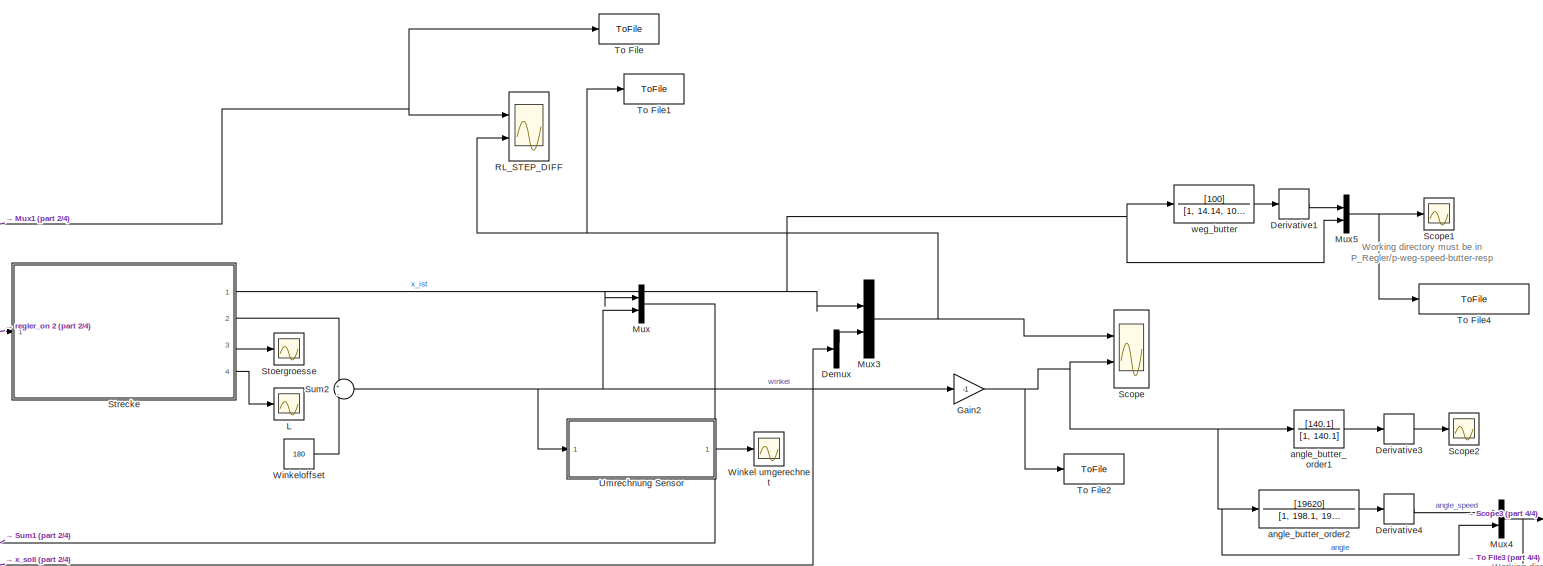
[diagram: root canvas - part 1/4, right side, full height]
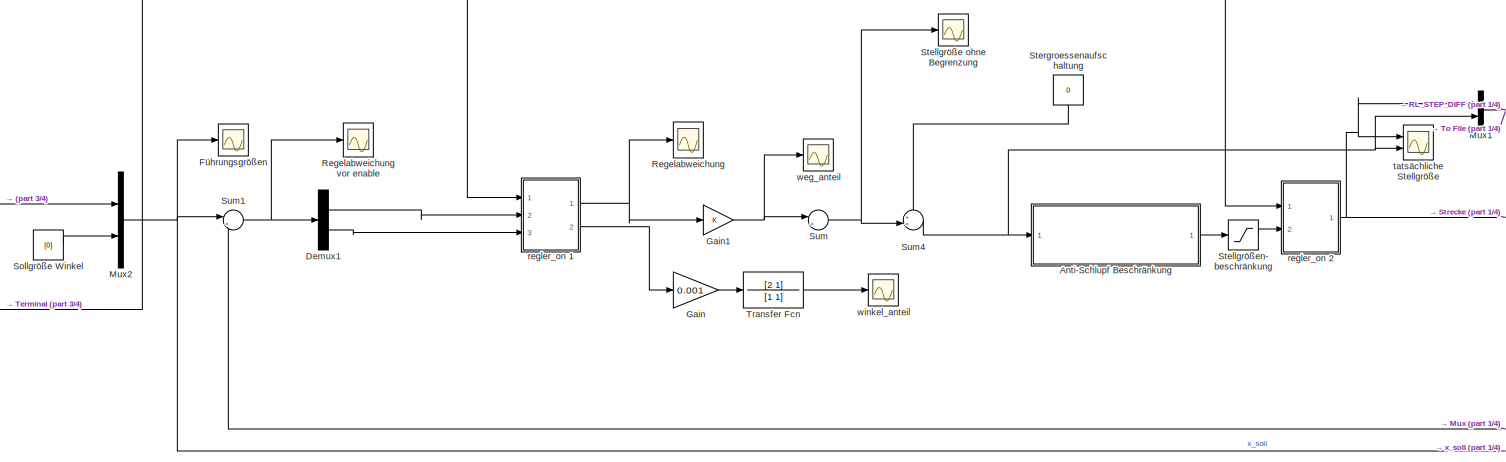
[diagram: root canvas - part 2/4, middle left region]
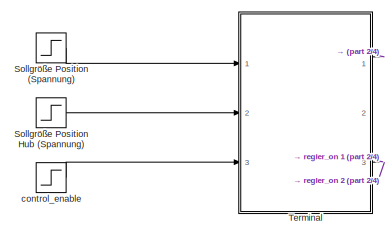
[diagram: root canvas - part 3/4, middle left region]
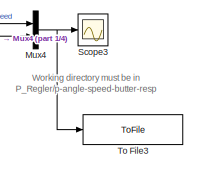
[diagram: root canvas - part 4/4, bottom right region]
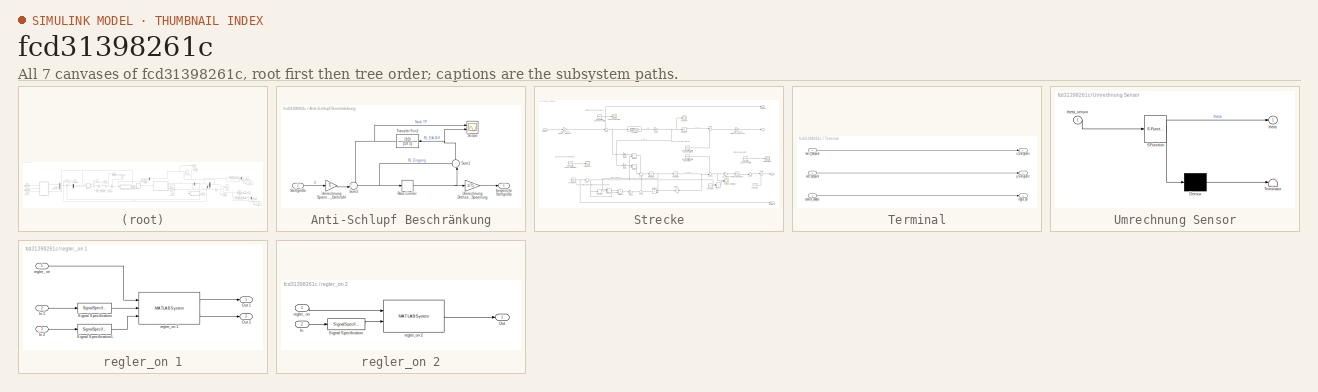
[diagram: thumbnail index - all 7 canvases of the model, root first then tree order]
MODEL slx_fcd31398261c
KIND model
CONFIG AbsTol = auto
CONFIG EnableMultiTasking = off
CONFIG FixedStep = 1e-3
CONFIG MaxStep = auto
CONFIG MinStep = auto
CONFIG RelTol = 1e3
CONFIG SampleTimeConstraint = Unconstrained
CONFIG Solver = VariableStepAuto
CONFIG SolverName = VariableStepAuto
CONFIG StartTime = 0.0
CONFIG StopTime = 20
BLOCK [SubSystem] Anti-Schlupf Beschränkung
  Ports = [1, 1]
  RequestExecContextInheritance = off
  Variant = off
BLOCK [RateLimiter] Anti-Schlupf Beschränkung/Rate Limiter
  FallingSlewLimit = -9.57
  RisingSlewLimit = 9.57
  SampleTimeMode = inherited
BLOCK [Scope] Anti-Schlupf Beschränkung/Scope
  NumInputPorts = 2
  Ports = [2]
  ScopeSpecificationString = Simulink.scopes.TimeScopeBlockCfg('CurrentConfiguration', extmgr.ConfigurationSet(extmgr.Configuration('Core','General UI',true),extmgr.Configuration('Core','Source UI',true),extmgr.Configuration('Sources','WiredSimulink',true,'DataLoggingVariableName','ScopeData1'),extmgr.Configuration('Visuals','Time Domain',true,'SerializedDisplays',{struct('MinYLimReal','-84.16163','MaxYLimReal','9.83981','YLa...<+1455ch>
BLOCK [Inport] Anti-Schlupf Beschränkung/Stellgröße
  IconDisplay = Port number
BLOCK [Sum] Anti-Schlupf Beschränkung/Sum1
  IconShape = round
  InputSameDT = off
  Inputs = -+|
  OutDataTypeStr = Inherit: Inherit via internal rule
  Ports = [2, 1]
  SaturateOnIntegerOverflow = off
BLOCK [Sum] Anti-Schlupf Beschränkung/Sum2
  IconShape = round
  InputSameDT = off
  Inputs = ++|
  OutDataTypeStr = Inherit: Inherit via internal rule
  Ports = [2, 1]
  SaturateOnIntegerOverflow = off
BLOCK [TransferFcn] Anti-Schlupf Beschränkung/Transfer Fcn2
  Denominator = [10 1]
  Numerator = [10]
BLOCK [Gain] Anti-Schlupf Beschränkung/Umrechnung Drehzahl_Spannung
  Gain = 1/75
  OutDataTypeStr = Inherit: Inherit via internal rule
  ParamDataTypeStr = Inherit: Inherit via internal rule
  SaturateOnIntegerOverflow = off
BLOCK [Gain] Anti-Schlupf Beschränkung/Umrechnung Spannung_Drehzahl
  Gain = 75
  OutDataTypeStr = Inherit: Inherit via internal rule
  ParamDataTypeStr = Inherit: Inherit via internal rule
  SaturateOnIntegerOverflow = off
BLOCK [Outport] Anti-Schlupf Beschränkung/begrenzte Stellgröße
  IconDisplay = Port number
BLOCK [Demux] Demux
  DisplayOption = bar
  Outputs = 2
  Ports = [1, 2]
BLOCK [Demux] Demux1
  DisplayOption = bar
  Outputs = 2
  Ports = [1, 2]
BLOCK [Derivative] Derivative1
BLOCK [Derivative] Derivative3
BLOCK [Derivative] Derivative4
BLOCK [Scope] Führungsgrößen
  NumInputPorts = 1
  Ports = [1]
  ScopeSpecificationString = Simulink.scopes.TimeScopeBlockCfg('CurrentConfiguration', extmgr.ConfigurationSet(extmgr.Configuration('Core','General UI',true),extmgr.Configuration('Core','Source UI',true),extmgr.Configuration('Sources','WiredSimulink',true,'DataLoggingVariableName','ScopeData7'),extmgr.Configuration('Visuals','Time Domain',true,'SerializedDisplays',{struct('MinYLimReal','-0.125','MaxYLimReal','1.125','YLabelRe...<+1395ch>
BLOCK [Gain] Gain
  Gain = 0.001
  OutDataTypeStr = Inherit: Inherit via internal rule
  ParamDataTypeStr = Inherit: Inherit via internal rule
  SaturateOnIntegerOverflow = off
BLOCK [Gain] Gain1
  OutDataTypeStr = Inherit: Inherit via internal rule
  ParamDataTypeStr = Inherit: Inherit via internal rule
  SaturateOnIntegerOverflow = off
BLOCK [Gain] Gain2
  Gain = -1
  OutDataTypeStr = Inherit: Inherit via internal rule
  ParamDataTypeStr = Inherit: Inherit via internal rule
  SaturateOnIntegerOverflow = off
BLOCK [Scope] L
  NumInputPorts = 1
  Ports = [1]
  ScopeSpecificationString = Simulink.scopes.TimeScopeBlockCfg('CurrentConfiguration', extmgr.ConfigurationSet(extmgr.Configuration('Core','General UI',true),extmgr.Configuration('Core','Source UI',true),extmgr.Configuration('Sources','WiredSimulink',true,'DataLoggingVariableName','ScopeData2','DataLoggingLimitDataPoints',true,'DataLoggingSaveFormat','Array','DataLoggingDecimation','1','DataLoggingDecimateData',true),extmgr.C...<+1467ch>
BLOCK [Mux] Mux
  DisplayOption = bar
  Inputs = 2
  Ports = [2, 1]
BLOCK [Mux] Mux1
  DisplayOption = bar
  Inputs = 2
  Ports = [2, 1]
BLOCK [Mux] Mux2
  DisplayOption = bar
  Inputs = 2
  Ports = [2, 1]
BLOCK [Mux] Mux3
  DisplayOption = bar
  Inputs = 2
  Ports = [2, 1]
BLOCK [Mux] Mux4
  DisplayOption = bar
  Inputs = 2
  Ports = [2, 1]
BLOCK [Mux] Mux5
  DisplayOption = bar
  Inputs = 2
  Ports = [2, 1]
BLOCK [Scope] RL_STEP_DIFF
  NumInputPorts = 2
  Ports = [2]
  ScopeSpecificationString = Simulink.scopes.TimeScopeBlockCfg('CurrentConfiguration', extmgr.ConfigurationSet(extmgr.Configuration('Core','General UI',true,'FigureColor',[1 1 1]),extmgr.Configuration('Core','Source UI',true),extmgr.Configuration('Sources','WiredSimulink',true,'DataLoggingVariableName','ScopeData2'),extmgr.Configuration('Visuals','Time Domain',true,'SerializedDisplays',{struct('MinYLimReal','-0.13002','MaxYLi...<+2327ch>
BLOCK [Scope] Regelabweichung
  NumInputPorts = 1
  Ports = [1]
  ScopeSpecificationString = Simulink.scopes.TimeScopeBlockCfg('CurrentConfiguration', extmgr.ConfigurationSet(extmgr.Configuration('Core','General UI',true),extmgr.Configuration('Core','Source UI',true),extmgr.Configuration('Sources','WiredSimulink',true,'DataLoggingVariableName','ScopeData6'),extmgr.Configuration('Visuals','Time Domain',true,'SerializedDisplays',{struct('MinYLimReal','-0.51161','MaxYLimReal','1.16763','YLab...<+1424ch>
BLOCK [Scope] Regelabweichung vor enable
  NumInputPorts = 1
  Ports = [1]
  ScopeSpecificationString = Simulink.scopes.TimeScopeBlockCfg('CurrentConfiguration', extmgr.ConfigurationSet(extmgr.Configuration('Core','General UI',true),extmgr.Configuration('Core','Source UI',true),extmgr.Configuration('Sources','WiredSimulink',true,'DataLoggingVariableName','ScopeData3'),extmgr.Configuration('Visuals','Time Domain',true,'SerializedDisplays',{struct('MinYLimReal','-7.48148','MaxYLimReal','3.58336','YLab...<+1426ch>
BLOCK [Scope] Scope
  NumInputPorts = 2
  Ports = [2]
  ScopeSpecificationString = Simulink.scopes.TimeScopeBlockCfg('CurrentConfiguration', extmgr.ConfigurationSet(extmgr.Configuration('Core','General UI',true,'FigureColor',[0 0 0]),extmgr.Configuration('Core','Source UI',true),extmgr.Configuration('Sources','WiredSimulink',true,'DataLoggingVariableName','ScopeData1'),extmgr.Configuration('Visuals','Time Domain',true,'SerializedDisplays',{struct('MinYLimReal','-0.17033','MaxYLi...<+2221ch>
BLOCK [Scope] Scope1
  NumInputPorts = 1
  Ports = [1]
  ScopeSpecificationString = Simulink.scopes.TimeScopeBlockCfg('CurrentConfiguration', extmgr.ConfigurationSet(extmgr.Configuration('Core','General UI',true),extmgr.Configuration('Core','Source UI',true),extmgr.Configuration('Sources','WiredSimulink',true,'DataLoggingVariableName','ScopeData2'),extmgr.Configuration('Visuals','Time Domain',true,'SerializedDisplays',{struct('MinYLimReal','-0.1301','MaxYLimReal','1.1301','YLabel...<+1372ch>
BLOCK [Scope] Scope2
  NumInputPorts = 1
  Ports = [1]
  ScopeSpecificationString = Simulink.scopes.TimeScopeBlockCfg('CurrentConfiguration', extmgr.ConfigurationSet(extmgr.Configuration('Core','General UI',true),extmgr.Configuration('Core','Source UI',true),extmgr.Configuration('Sources','WiredSimulink',true,'DataLoggingVariableName','ScopeData2','DataLoggingSaveFormat','Array','DataLoggingDecimation','1','DataLoggingDecimateData',true),extmgr.Configuration('Visuals','Time Domai...<+1494ch>
BLOCK [Scope] Scope3
  NumInputPorts = 1
  Ports = [1]
  ScopeSpecificationString = Simulink.scopes.TimeScopeBlockCfg('CurrentConfiguration', extmgr.ConfigurationSet(extmgr.Configuration('Core','General UI',true),extmgr.Configuration('Core','Source UI',true),extmgr.Configuration('Sources','WiredSimulink',true,'DataLoggingVariableName','ScopeData1'),extmgr.Configuration('Visuals','Time Domain',true,'SerializedDisplays',{struct('MinYLimReal','-30.59846','MaxYLimReal','30.90267','YL...<+1384ch>
BLOCK [Step] Sollgröße Position (Spannung)
  SampleTime = 0
BLOCK [Step] Sollgröße Position Hub (Spannung)
  After = 0.5
  SampleTime = 0
  Time = 2
BLOCK [Constant] Sollgröße Winkel
  Value = [0]
  VectorParams1D = off
BLOCK [Scope] Stellgröße ohne Begrenzung
  NumInputPorts = 1
  Ports = [1]
  ScopeSpecificationString = Simulink.scopes.TimeScopeBlockCfg('CurrentConfiguration', extmgr.ConfigurationSet(extmgr.Configuration('Core','General UI',true),extmgr.Configuration('Core','Source UI',true),extmgr.Configuration('Sources','WiredSimulink',true,'DataLoggingVariableName','ScopeData5'),extmgr.Configuration('Visuals','Time Domain',true,'SerializedDisplays',{struct('MinYLimReal','-310.10219','MaxYLimReal','60.85818','Y...<+1453ch>
BLOCK [Saturate] Stellgrößen- beschränkung
  InputPortMap = u0
  LowerLimit = -1
  Ports = [1, 1]
  UpperLimit = 1
BLOCK [Constant] Stergroessenaufschaltung
  Value = 0
BLOCK [Scope] Stoergroesse
  NumInputPorts = 1
  Ports = [1]
  ScopeSpecificationString = Simulink.scopes.TimeScopeBlockCfg('CurrentConfiguration', extmgr.ConfigurationSet(extmgr.Configuration('Core','General UI',true),extmgr.Configuration('Core','Source UI',true),extmgr.Configuration('Sources','WiredSimulink',true,'DataLoggingVariableName','ScopeData1','DataLoggingLimitDataPoints',true,'DataLoggingSaveFormat','Array','DataLoggingDecimation','1','DataLoggingDecimateData',true),extmgr.C...<+1467ch>
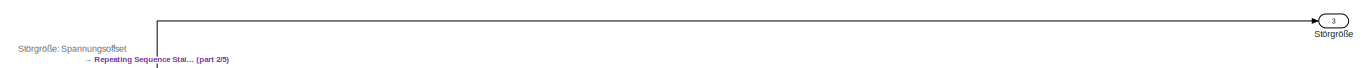
[diagram: Strecke - part 1/5, full width, top band]
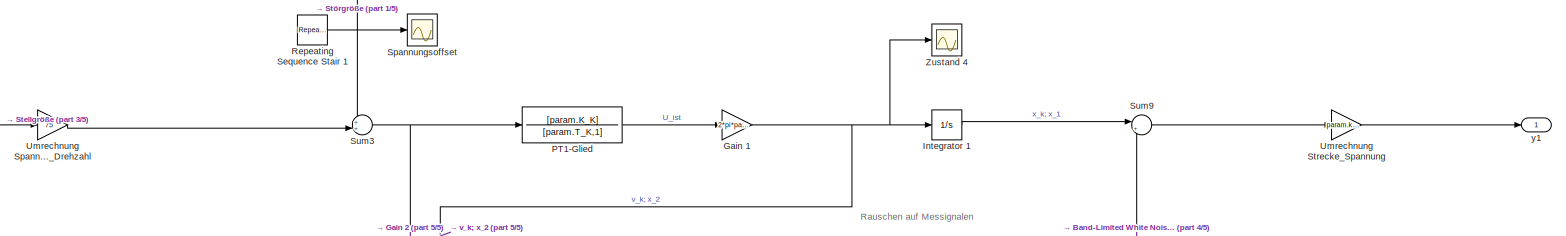
[diagram: Strecke - part 2/5, full width, top band]
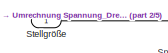
[diagram: Strecke - part 3/5, top left region]
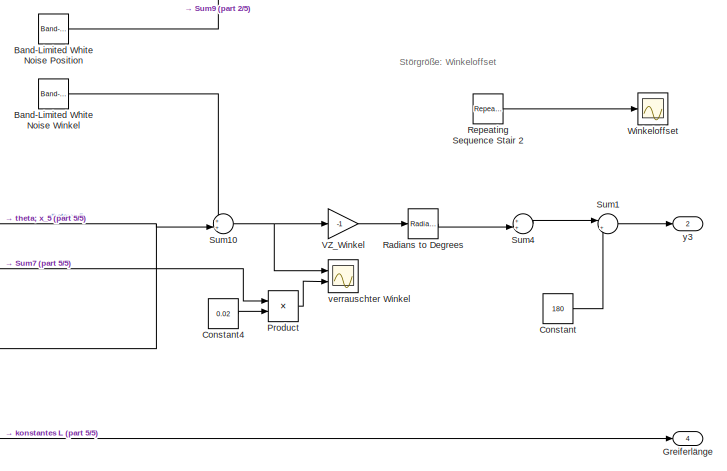
[diagram: Strecke - part 4/5, bottom right region]
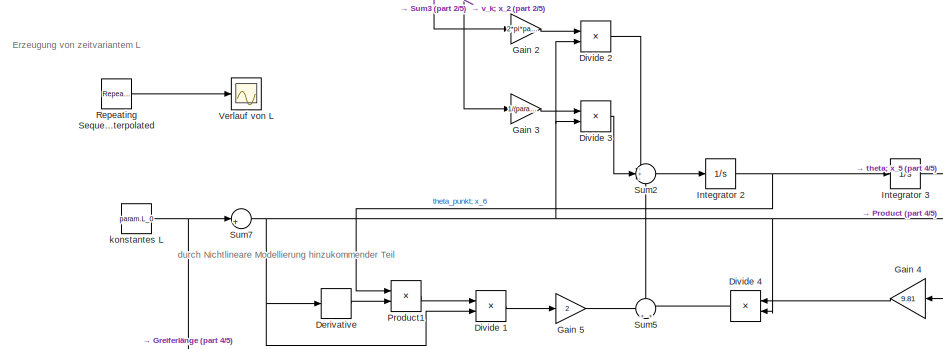
[diagram: Strecke - part 5/5, bottom left region]
BLOCK [SubSystem] Strecke
  Ports = [1, 4]
  RequestExecContextInheritance = off
  Variant = off
BLOCK [Reference] Strecke/Band-Limited White Noise Position  REF=simulink/Sources/Band-Limited
White Noise
  Ports = [0, 1]
  SourceBlock = simulink/Sources/Band-Limited\nWhite Noise
  SourceType = Band-Limited White Noise.
BLOCK [Reference] Strecke/Band-Limited White Noise Winkel  REF=simulink/Sources/Band-Limited
White Noise
  Ports = [0, 1]
  SourceBlock = simulink/Sources/Band-Limited\nWhite Noise
  SourceType = Band-Limited White Noise.
BLOCK [Constant] Strecke/Constant
  Value = 180
BLOCK [Constant] Strecke/Constant4
  Value = 0.02
BLOCK [Derivative] Strecke/Derivative
BLOCK [Product] Strecke/Divide 1
  InputSameDT = off
  Inputs = */
  OutDataTypeStr = Inherit: Inherit via internal rule
  Ports = [2, 1]
  RndMeth = Floor
  SaturateOnIntegerOverflow = off
BLOCK [Product] Strecke/Divide 2
  InputSameDT = off
  Inputs = */
  OutDataTypeStr = Inherit: Inherit via internal rule
  Ports = [2, 1]
  RndMeth = Floor
  SaturateOnIntegerOverflow = off
BLOCK [Product] Strecke/Divide 3
  InputSameDT = off
  Inputs = */
  OutDataTypeStr = Inherit: Inherit via internal rule
  Ports = [2, 1]
  RndMeth = Floor
  SaturateOnIntegerOverflow = off
BLOCK [Product] Strecke/Divide 4
  InputSameDT = off
  Inputs = */
  OutDataTypeStr = Inherit: Inherit via internal rule
  Ports = [2, 1]
  RndMeth = Floor
  SaturateOnIntegerOverflow = off
BLOCK [Gain] Strecke/Gain 1
  Gain = 2*pi*param.r_K/param.ue_K
  OutDataTypeStr = Inherit: Inherit via internal rule
  ParamDataTypeStr = Inherit: Inherit via internal rule
  SaturateOnIntegerOverflow = off
BLOCK [Gain] Strecke/Gain 2
  Gain = 2*pi*param.r_K*param.K_K/(param.ue_K*param.T_K)
  OutDataTypeStr = Inherit: Inherit via internal rule
  ParamDataTypeStr = Inherit: Inherit via internal rule
  SaturateOnIntegerOverflow = off
BLOCK [Gain] Strecke/Gain 3
  Gain = 1/(param.T_K)
  OutDataTypeStr = Inherit: Inherit via internal rule
  ParamDataTypeStr = Inherit: Inherit via internal rule
  SaturateOnIntegerOverflow = off
BLOCK [Gain] Strecke/Gain 4
  Gain = 9.81
  OutDataTypeStr = Inherit: Inherit via internal rule
  ParamDataTypeStr = Inherit: Inherit via internal rule
  SaturateOnIntegerOverflow = off
BLOCK [Gain] Strecke/Gain 5
  Gain = 2
  OutDataTypeStr = Inherit: Inherit via internal rule
  ParamDataTypeStr = Inherit: Inherit via internal rule
  SaturateOnIntegerOverflow = off
BLOCK [Outport] Strecke/Greiferlänge
  IconDisplay = Port number
  Port = 4
BLOCK [Integrator] Strecke/Integrator 1
  Ports = [1, 1]
BLOCK [Integrator] Strecke/Integrator 2
  Ports = [1, 1]
BLOCK [Integrator] Strecke/Integrator 3
  Ports = [1, 1]
BLOCK [TransferFcn] Strecke/PT1-Glied
  Denominator = [param.T_K,1]
  Numerator = [param.K_K]
BLOCK [Product] Strecke/Product
  InputSameDT = off
  OutDataTypeStr = Inherit: Inherit via internal rule
  Ports = [2, 1]
  RndMeth = Floor
  SaturateOnIntegerOverflow = off
BLOCK [Product] Strecke/Product1
  InputSameDT = off
  OutDataTypeStr = Inherit: Inherit via internal rule
  Ports = [2, 1]
  RndMeth = Floor
  SaturateOnIntegerOverflow = off
BLOCK [Reference] Strecke/Radians to Degrees  REF=simulink_extras/Transformations/Radians
to Degrees
  Ports = [1, 1]
  SourceBlock = simulink_extras/Transformations/Radians\nto Degrees
  SourceType = RadiansToDegrees
BLOCK [Reference] Strecke/Repeating Sequence Interpolated  REF=simulink/Sources/Repeating
Sequence
Interpolated
  Ports = [0, 1]
  SourceBlock = simulink/Sources/Repeating\nSequence\nInterpolated
  SourceType = Repeating Sequence Interpolated
BLOCK [Reference] Strecke/Repeating Sequence Stair 1  REF=simulink/Sources/Repeating
Sequence
Stair
  Ports = [0, 1]
  SourceBlock = simulink/Sources/Repeating\nSequence\nStair
  SourceType = Repeating Sequence Stair
BLOCK [Reference] Strecke/Repeating Sequence Stair 2  REF=simulink/Sources/Repeating
Sequence
Stair
  Ports = [0, 1]
  SourceBlock = simulink/Sources/Repeating\nSequence\nStair
  SourceType = Repeating Sequence Stair
BLOCK [Scope] Strecke/Spannungsoffset
  NumInputPorts = 1
  Ports = [1]
  ScopeSpecificationString = Simulink.scopes.TimeScopeBlockCfg('CurrentConfiguration', extmgr.ConfigurationSet(extmgr.Configuration('Core','General UI',true),extmgr.Configuration('Core','Source UI',true),extmgr.Configuration('Sources','WiredSimulink',true,'DataLoggingVariableName','ScopeData1','DataLoggingLimitDataPoints',true,'DataLoggingSaveFormat','Array','DataLoggingDecimation','1','DataLoggingDecimateData',true),extmgr.C...<+1484ch>
BLOCK [Inport] Strecke/Stellgröße
  IconDisplay = Port number
BLOCK [Outport] Strecke/Störgröße
  IconDisplay = Port number
  Port = 3
BLOCK [Sum] Strecke/Sum1
  IconShape = round
  InputSameDT = off
  Inputs = |++
  OutDataTypeStr = Inherit: Inherit via internal rule
  Ports = [2, 1]
  SaturateOnIntegerOverflow = off
BLOCK [Sum] Strecke/Sum10
  IconShape = round
  InputSameDT = off
  Inputs = ++|
  OutDataTypeStr = Inherit: Inherit via internal rule
  Ports = [2, 1]
  SaturateOnIntegerOverflow = off
BLOCK [Sum] Strecke/Sum2
  IconShape = round
  InputSameDT = off
  Inputs = -+-
  OutDataTypeStr = Inherit: Inherit via internal rule
  Ports = [3, 1]
  SaturateOnIntegerOverflow = off
BLOCK [Sum] Strecke/Sum3
  IconShape = round
  InputSameDT = off
  Inputs = ++|
  OutDataTypeStr = Inherit: Inherit via internal rule
  Ports = [2, 1]
  SaturateOnIntegerOverflow = off
BLOCK [Sum] Strecke/Sum4
  IconShape = round
  InputSameDT = off
  Inputs = ++|
  OutDataTypeStr = Inherit: Inherit via internal rule
  Ports = [2, 1]
  SaturateOnIntegerOverflow = off
BLOCK [Sum] Strecke/Sum5
  IconShape = round
  InputSameDT = off
  Inputs = +|+
  OutDataTypeStr = Inherit: Inherit via internal rule
  Ports = [2, 1]
  SaturateOnIntegerOverflow = off
BLOCK [Sum] Strecke/Sum7
  IconShape = round
  InputSameDT = off
  Inputs = |+|
  OutDataTypeStr = Inherit: Inherit via internal rule
  Ports = [1, 1]
  SaturateOnIntegerOverflow = off
BLOCK [Sum] Strecke/Sum9
  IconShape = round
  InputSameDT = off
  Inputs = |++
  OutDataTypeStr = Inherit: Inherit via internal rule
  Ports = [2, 1]
  SaturateOnIntegerOverflow = off
BLOCK [Gain] Strecke/Umrechnung Spannung_Drehzahl
  Gain = 75
  OutDataTypeStr = Inherit: Inherit via internal rule
  ParamDataTypeStr = Inherit: Inherit via internal rule
  SaturateOnIntegerOverflow = off
BLOCK [Gain] Strecke/Umrechnung Strecke_Spannung
  Gain = param.k_AWG_K
  OutDataTypeStr = Inherit: Inherit via internal rule
  ParamDataTypeStr = Inherit: Inherit via internal rule
  SaturateOnIntegerOverflow = off
BLOCK [Gain] Strecke/VZ_Winkel
  Gain = -1
  OutDataTypeStr = Inherit: Inherit via internal rule
  ParamDataTypeStr = Inherit: Inherit via internal rule
  SaturateOnIntegerOverflow = off
BLOCK [Scope] Strecke/Verlauf von L
  NumInputPorts = 1
  Ports = [1]
  ScopeSpecificationString = Simulink.scopes.TimeScopeBlockCfg('CurrentConfiguration', extmgr.ConfigurationSet(extmgr.Configuration('Core','General UI',true),extmgr.Configuration('Core','Source UI',true),extmgr.Configuration('Sources','WiredSimulink',true,'DataLoggingVariableName','ScopeData2','DataLoggingSaveFormat','Array','DataLoggingDecimation','1','DataLoggingDecimateData',true),extmgr.Configuration('Visuals','Time Domai...<+1525ch>
BLOCK [Scope] Strecke/Winkeloffset
  NumInputPorts = 1
  Ports = [1]
  ScopeSpecificationString = Simulink.scopes.TimeScopeBlockCfg('CurrentConfiguration', extmgr.ConfigurationSet(extmgr.Configuration('Core','General UI',true),extmgr.Configuration('Core','Source UI',true),extmgr.Configuration('Sources','WiredSimulink',true,'DataLoggingVariableName','ScopeData1'),extmgr.Configuration('Visuals','Time Domain',true,'SerializedDisplays',{struct('MinYLimReal','0.02491','MaxYLimReal','0.04491','YLabe...<+1407ch>
BLOCK [Scope] Strecke/Zustand 4
  NumInputPorts = 1
  Ports = [1]
  ScopeSpecificationString = Simulink.scopes.TimeScopeBlockCfg('CurrentConfiguration', extmgr.ConfigurationSet(extmgr.Configuration('Core','General UI',true),extmgr.Configuration('Core','Source UI',true),extmgr.Configuration('Sources','WiredSimulink',true,'DataLoggingVariableName','ScopeData4','DataLoggingSaveFormat','Array','DataLoggingDecimation','1','DataLoggingDecimateData',true),extmgr.Configuration('Visuals','Time Domai...<+1544ch>
BLOCK [Constant] Strecke/konstantes L
  Value = param.L_0
BLOCK [Scope] Strecke/verrauschter Winkel
  NumInputPorts = 2
  Ports = [2]
  ScopeSpecificationString = Simulink.scopes.TimeScopeBlockCfg('CurrentConfiguration', extmgr.ConfigurationSet(extmgr.Configuration('Core','General UI',true),extmgr.Configuration('Core','Source UI',true),extmgr.Configuration('Sources','WiredSimulink',true,'DataLoggingVariableName','ScopeData5'),extmgr.Configuration('Visuals','Time Domain',true,'SerializedDisplays',{struct('MinYLimReal','-0.11938','MaxYLimReal','0.15001','YLab...<+1401ch>
BLOCK [Outport] Strecke/y1
  IconDisplay = Port number
BLOCK [Outport] Strecke/y3
  IconDisplay = Port number
  Port = 2
BLOCK [Sum] Sum
  IconShape = round
  InputSameDT = off
  Inputs = |++
  OutDataTypeStr = Inherit: Inherit via internal rule
  Ports = [2, 1]
  SaturateOnIntegerOverflow = off
BLOCK [Sum] Sum1
  IconShape = round
  InputSameDT = off
  Inputs = |+-
  OutDataTypeStr = Inherit: Inherit via internal rule
  Ports = [2, 1]
  SaturateOnIntegerOverflow = off
BLOCK [Sum] Sum2
  IconShape = round
  InputSameDT = off
  Inputs = +|-
  OutDataTypeStr = Inherit: Inherit via internal rule
  Ports = [2, 1]
  SaturateOnIntegerOverflow = off
BLOCK [Sum] Sum4
  IconShape = round
  InputSameDT = off
  Inputs = ++|
  OutDataTypeStr = Inherit: Inherit via internal rule
  Ports = [2, 1]
  SaturateOnIntegerOverflow = off
BLOCK [SubSystem] Terminal
  Ports = [3, 3]
  RequestExecContextInheritance = off
  Variant = off
BLOCK [Inport] Terminal/control_enable
  IconDisplay = Port number
  Port = 3
BLOCK [Inport] Terminal/horiz_setpoint
  IconDisplay = Port number
BLOCK [Outport] Terminal/regler_an
  IconDisplay = Port number
  Port = 3
BLOCK [Inport] Terminal/vert_setpoint
  IconDisplay = Port number
  Port = 2
BLOCK [Outport] Terminal/x-Sollgröße
  IconDisplay = Port number
BLOCK [Outport] Terminal/y-Sollgröße
  IconDisplay = Port number
  Port = 2
BLOCK [ToFile] To File
  Commented = on
  Filename = rl_diff
  Ports = [1]
  SaveFormat = Timeseries
BLOCK [ToFile] To File1
  Commented = on
  Filename = step
  Ports = [1]
  SaveFormat = Timeseries
BLOCK [ToFile] To File2
  Commented = on
  Filename = angle
  Ports = [1]
  SaveFormat = Timeseries
BLOCK [ToFile] To File3
  Commented = on
  Filename = angle_butter_resp
  Ports = [1]
  SaveFormat = Timeseries
BLOCK [ToFile] To File4
  Commented = on
  Filename = weg_butter_resp
  Ports = [1]
  SaveFormat = Timeseries
BLOCK [TransferFcn] Transfer Fcn
  Denominator = [1 1]
  Numerator = [2 1]
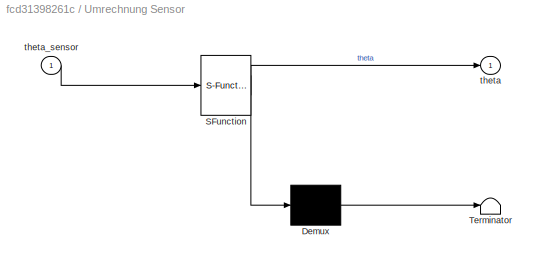
BLOCK [SubSystem] Umrechnung Sensor
  ErrorFcn = Stateflow.Translate.translate
  PermitHierarchicalResolution = ExplicitOnly
  Ports = [1, 1]
  RequestExecContextInheritance = off
  SFBlockType = MATLAB Function
  TreatAsAtomicUnit = on
  Variant = off
BLOCK [Demux] Umrechnung Sensor/ Demux 
  Outputs = 1
  Ports = [1, 1]
BLOCK [S-Function] Umrechnung Sensor/ SFunction 
  EnableBusSupport = on
  FunctionName = sf_sfun
  PortCounts = [1 2]
  Ports = [1, 2]
  SFcnIsStateOwnerBlock = off
  SFunctionDeploymentMode = off
  Tag = Stateflow S-Function sim_p_regler_reale_strecke 2
BLOCK [Terminator] Umrechnung Sensor/ Terminator 
BLOCK [Outport] Umrechnung Sensor/theta
  IconDisplay = Port number
BLOCK [Inport] Umrechnung Sensor/theta_sensor
  IconDisplay = Port number
BLOCK [Scope] Winkel umgerechnet
  NumInputPorts = 1
  Ports = [1]
  ScopeSpecificationString = Simulink.scopes.TimeScopeBlockCfg('CurrentConfiguration', extmgr.ConfigurationSet(extmgr.Configuration('Core','General UI',true),extmgr.Configuration('Core','Source UI',true),extmgr.Configuration('Sources','WiredSimulink',true,'DataLoggingVariableName','ScopeData9'),extmgr.Configuration('Visuals','Time Domain',true,'SerializedDisplays',{struct('MinYLimReal','-1.96293','MaxYLimReal','1.9631','YLabe...<+1399ch>
BLOCK [Constant] Winkeloffset
  Value = 180
BLOCK [TransferFcn] angle_butter_order1
  Denominator = [1, 140.1]
  Numerator = [140.1]
BLOCK [TransferFcn] angle_butter_order2
  Denominator = [1, 198.1, 19620]
  Numerator = [19620]
BLOCK [Step] control_enable
  SampleTime = 0
  Time = 0
BLOCK [SubSystem] regler_on 1
  Ports = [3, 2]
  RequestExecContextInheritance = off
  Variant = off
BLOCK [Inport] regler_on 1/In 1
  IconDisplay = Port number
  Port = 2
BLOCK [Inport] regler_on 1/In 2
  IconDisplay = Port number
  Port = 3
BLOCK [Outport] regler_on 1/Out 1
  IconDisplay = Port number
BLOCK [Outport] regler_on 1/Out 2
  IconDisplay = Port number
  Port = 2
BLOCK [SignalSpecification] regler_on 1/Signal Specification
  Dimensions = 1
BLOCK [SignalSpecification] regler_on 1/Signal Specification1
  Dimensions = 1
BLOCK [Inport] regler_on 1/regler_ on
  IconDisplay = Port number
BLOCK [MATLABSystem] regler_on 1/regler_on 1
  MaskDisplay = disp('regler_switch_2');\nport_label('input',1,'regler_on');\nport_label('input',2,'input1');\nport_label('input',3,'input2');\nport_label('output',1,'y1');\nport_label('output',2,'y2');
  MaskType = regler_switch_2
  Ports = [3, 2]
  SimulateUsing = Code generation
  System = regler_switch_2
BLOCK [SubSystem] regler_on 2
  Ports = [2, 1]
  RequestExecContextInheritance = off
  Variant = off
BLOCK [Inport] regler_on 2/In
  IconDisplay = Port number
  Port = 2
BLOCK [Outport] regler_on 2/Out
  IconDisplay = Port number
BLOCK [SignalSpecification] regler_on 2/Signal Specification
  Dimensions = 1
BLOCK [Inport] regler_on 2/regler_ on
  IconDisplay = Port number
BLOCK [MATLABSystem] regler_on 2/regler_on 2
  MaskDisplay = disp('regler_switch_1');\nport_label('input',1,'regler_on');\nport_label('input',2,'input');\nport_label('output',1,'y');
  MaskType = regler_switch_1
  Ports = [2, 1]
  SimulateUsing = Code generation
  System = regler_switch_1
BLOCK [Scope] tatsächliche Stellgröße
  NumInputPorts = 2
  Ports = [2]
  ScopeSpecificationString = Simulink.scopes.TimeScopeBlockCfg('CurrentConfiguration', extmgr.ConfigurationSet(extmgr.Configuration('Core','General UI',true),extmgr.Configuration('Core','Source UI',true),extmgr.Configuration('Sources','WiredSimulink',true,'DataLoggingVariableName','ScopeData2'),extmgr.Configuration('Visuals','Time Domain',true,'SerializedDisplays',{struct('MinYLimReal','-0.50679','MaxYLimReal','1.16856','YLab...<+1684ch>
BLOCK [Scope] weg_anteil
  NumInputPorts = 1
  Ports = [1]
  ScopeSpecificationString = Simulink.scopes.TimeScopeBlockCfg('CurrentConfiguration', extmgr.ConfigurationSet(extmgr.Configuration('Core','General UI',true),extmgr.Configuration('Core','Source UI',true),extmgr.Configuration('Sources','WiredSimulink',true,'DataLoggingVariableName','ScopeData2'),extmgr.Configuration('Visuals','Time Domain',true,'SerializedDisplays',{struct('MinYLimReal','-0.12875','MaxYLimReal','1.12915','YLab...<+1393ch>
BLOCK [TransferFcn] weg_butter
  Denominator = [1, 14.14, 100]
  Numerator = [100]
BLOCK [Scope] winkel_anteil
  NumInputPorts = 1
  Ports = [1]
  ScopeSpecificationString = Simulink.scopes.TimeScopeBlockCfg('CurrentConfiguration', extmgr.ConfigurationSet(extmgr.Configuration('Core','General UI',true),extmgr.Configuration('Core','Source UI',true),extmgr.Configuration('Sources','WiredSimulink',true,'DataLoggingVariableName','ScopeData1'),extmgr.Configuration('Visuals','Time Domain',true,'SerializedDisplays',{struct('MinYLimReal','-0.01376','MaxYLimReal','0.00641','YLab...<+1371ch>
ANNOTATION (root): Working directory must be in P_Regler/p-angle-speed-butter-resp
ANNOTATION (root): Working directory must be in P_Regler/p-weg-speed-butter-resp
ANNOTATION Strecke: Erzeugung von zeitvariantem L
ANNOTATION Strecke: Rauschen auf Messignalen
ANNOTATION Strecke: Störgröße: Spannungsoffset
ANNOTATION Strecke: Störgröße: Winkeloffset
ANNOTATION Strecke: durch Nichtlineare Modellierung hinzukommender Teil
NET Anti-Schlupf Beschränkung/Rate Limiter:1 -> Anti-Schlupf Beschränkung/Sum1:2, Anti-Schlupf Beschränkung/Umrechnung Drehzahl_Spannung:1
LINE Anti-Schlupf Beschränkung/Stellgröße:1 -> Anti-Schlupf Beschränkung/Umrechnung Spannung_Drehzahl:1
NET Anti-Schlupf Beschränkung/Sum1:1 -> Anti-Schlupf Beschränkung/Scope:2, Anti-Schlupf Beschränkung/Transfer Fcn2:1
NET Anti-Schlupf Beschränkung/Sum2:1 -> Anti-Schlupf Beschränkung/Rate Limiter:1, Anti-Schlupf Beschränkung/Sum1:1
NET Anti-Schlupf Beschränkung/Transfer Fcn2:1 -> Anti-Schlupf Beschränkung/Scope:1, Anti-Schlupf Beschränkung/Sum2:1
LINE Anti-Schlupf Beschränkung/Umrechnung Drehzahl_Spannung:1 -> Anti-Schlupf Beschränkung/begrenzte Stellgröße:1
LINE Anti-Schlupf Beschränkung/Umrechnung Spannung_Drehzahl:1 -> Anti-Schlupf Beschränkung/Sum2:2
LINE Anti-Schlupf Beschränkung:1 -> Stellgrößen- beschränkung:1
LINE Demux1:1 -> regler_on 1:2
LINE Demux1:2 -> regler_on 1:3
LINE Demux:1 -> Mux3:2
LINE Derivative1:1 -> Mux5:1
LINE Derivative3:1 -> Scope2:1
LINE Derivative4:1 -> Mux4:1
NET Gain1:1 -> Sum:1, weg_anteil:1
NET Gain2:1 -> Mux4:2, Scope:2, To File2:1, angle_butter_order1:1, angle_butter_order2:1
LINE Gain:1 -> Transfer Fcn:1
NET Mux1:1 -> RL_STEP_DIFF:1, To File:1
NET Mux2:1 -> Demux:1, Führungsgrößen:1, Sum1:1
NET Mux3:1 -> RL_STEP_DIFF:2, Scope:1, To File1:1
NET Mux4:1 -> Scope3:1, To File3:1
NET Mux5:1 -> Scope1:1, To File4:1
LINE Mux:1 -> Sum1:2
LINE Sollgröße Position (Spannung):1 -> Terminal:1
LINE Sollgröße Position Hub (Spannung):1 -> Terminal:2
LINE Sollgröße Winkel:1 -> Mux2:2
LINE Stellgrößen- beschränkung:1 -> regler_on 2:2
LINE Stergroessenaufschaltung:1 -> Sum4:1
LINE Strecke/Band-Limited White Noise Position:1 -> Strecke/Sum9:2
LINE Strecke/Band-Limited White Noise Winkel:1 -> Strecke/Sum10:1
LINE Strecke/Constant4:1 -> Strecke/Product:2
LINE Strecke/Constant:1 -> Strecke/Sum1:2
LINE Strecke/Derivative:1 -> Strecke/Product1:2
LINE Strecke/Divide 1:1 -> Strecke/Gain 5:1
LINE Strecke/Divide 2:1 -> Strecke/Sum2:1
LINE Strecke/Divide 3:1 -> Strecke/Sum2:2
LINE Strecke/Divide 4:1 -> Strecke/Sum5:2
NET Strecke/Gain 1:1 -> Strecke/Gain 3:1, Strecke/Integrator 1:1, Strecke/Zustand 4:1
LINE Strecke/Gain 2:1 -> Strecke/Divide 2:1
LINE Strecke/Gain 3:1 -> Strecke/Divide 3:1
LINE Strecke/Gain 4:1 -> Strecke/Divide 4:1
LINE Strecke/Gain 5:1 -> Strecke/Sum5:1
LINE Strecke/Integrator 1:1 -> Strecke/Sum9:1
NET Strecke/Integrator 2:1 -> Strecke/Integrator 3:1, Strecke/Product1:1
NET Strecke/Integrator 3:1 -> Strecke/Gain 4:1, Strecke/Sum10:2
LINE Strecke/PT1-Glied:1 -> Strecke/Gain 1:1
LINE Strecke/Product1:1 -> Strecke/Divide 1:1
LINE Strecke/Product:1 -> Strecke/verrauschter Winkel:2
LINE Strecke/Radians to Degrees:1 -> Strecke/Sum4:2
LINE Strecke/Repeating Sequence Interpolated:1 -> Strecke/Verlauf von L:1
NET Strecke/Repeating Sequence Stair 1:1 -> Strecke/Spannungsoffset:1, Strecke/Störgröße:1, Strecke/Sum3:1
LINE Strecke/Repeating Sequence Stair 2:1 -> Strecke/Winkeloffset:1
LINE Strecke/Stellgröße:1 -> Strecke/Umrechnung Spannung_Drehzahl:1
NET Strecke/Sum10:1 -> Strecke/VZ_Winkel:1, Strecke/verrauschter Winkel:1
LINE Strecke/Sum1:1 -> Strecke/y3:1
LINE Strecke/Sum2:1 -> Strecke/Integrator 2:1
NET Strecke/Sum3:1 -> Strecke/Gain 2:1, Strecke/PT1-Glied:1
LINE Strecke/Sum4:1 -> Strecke/Sum1:1
LINE Strecke/Sum5:1 -> Strecke/Sum2:3
NET Strecke/Sum7:1 -> Strecke/Derivative:1, Strecke/Divide 1:2, Strecke/Divide 2:2, Strecke/Divide 3:2, Strecke/Divide 4:2, Strecke/Product:1
LINE Strecke/Sum9:1 -> Strecke/Umrechnung Strecke_Spannung:1
LINE Strecke/Umrechnung Spannung_Drehzahl:1 -> Strecke/Sum3:2
LINE Strecke/Umrechnung Strecke_Spannung:1 -> Strecke/y1:1
LINE Strecke/VZ_Winkel:1 -> Strecke/Radians to Degrees:1
NET Strecke/konstantes L:1 -> Strecke/Greiferlänge:1, Strecke/Sum7:1
NET Strecke:1 -> Mux3:1, Mux5:2, Mux:1, weg_butter:1
LINE Strecke:2 -> Sum2:1
LINE Strecke:3 -> Stoergroesse:1
LINE Strecke:4 -> L:1
NET Sum1:1 -> Demux1:1, Regelabweichung vor enable:1
NET Sum2:1 -> Gain2:1, Mux:2, Umrechnung Sensor:1
NET Sum4:1 -> Anti-Schlupf Beschränkung:1, Mux1:2, tatsächliche Stellgröße:2
NET Sum:1 -> Stellgröße ohne Begrenzung:1, Sum4:2
LINE Terminal/control_enable:1 -> Terminal/regler_an:1
LINE Terminal/horiz_setpoint:1 -> Terminal/x-Sollgröße:1
LINE Terminal/vert_setpoint:1 -> Terminal/y-Sollgröße:1
LINE Terminal:1 -> Mux2:1
NET Terminal:3 -> regler_on 1:1, regler_on 2:1
LINE Transfer Fcn:1 -> winkel_anteil:1
LINE Umrechnung Sensor:1 -> Winkel umgerechnet:1
LINE Winkeloffset:1 -> Sum2:2
LINE angle_butter_order1:1 -> Derivative3:1
LINE angle_butter_order2:1 -> Derivative4:1
LINE control_enable:1 -> Terminal:3
LINE regler_on 1/In 1:1 -> regler_on 1/Signal Specification:1
LINE regler_on 1/In 2:1 -> regler_on 1/Signal Specification1:1
LINE regler_on 1/Signal Specification1:1 -> regler_on 1/regler_on 1:3
LINE regler_on 1/Signal Specification:1 -> regler_on 1/regler_on 1:2
LINE regler_on 1/regler_ on:1 -> regler_on 1/regler_on 1:1
LINE regler_on 1/regler_on 1:1 -> regler_on 1/Out 1:1
LINE regler_on 1/regler_on 1:2 -> regler_on 1/Out 2:1
NET regler_on 1:1 -> Gain1:1, Regelabweichung:1
LINE regler_on 1:2 -> Gain:1
LINE regler_on 2/In:1 -> regler_on 2/Signal Specification:1
LINE regler_on 2/Signal Specification:1 -> regler_on 2/regler_on 2:2
LINE regler_on 2/regler_ on:1 -> regler_on 2/regler_on 2:1
LINE regler_on 2/regler_on 2:1 -> regler_on 2/Out:1
NET regler_on 2:1 -> Mux1:1, Strecke:1, tatsächliche Stellgröße:1
LINE weg_butter:1 -> Derivative1:1
note: NET lines group one-source signal fan-out (src -> all destinations, sorted); 1:1 wires keep LINE
CHART Umrechnung Sensor states=1 transitions=1
  STATE_LABEL 'eML_blk_kernel()'
  STATE_LABEL 'SCRIPT:\nfunction theta  = sensorWinkel(theta_sensor)\n% berechnet aus dem gemessenen Winkel den tatsächlichen Winkel des\n% Lasthebers\n\n% l_verb: Länge des Verbindungsstücks\n% l_welle: Abstand der beiden Wellen\n\n% Parameter für die Winkelumrechnung\nl_verb = 0.109; % m %\nl_welle = 0.0575; % m %\n\ntheta = asin(sin(theta_sensor) * (l_verb / sqrt(l_welle^2 + l_verb^2 - (2 * l_verb * l_welle * cos(theta_s...<+13ch>'
